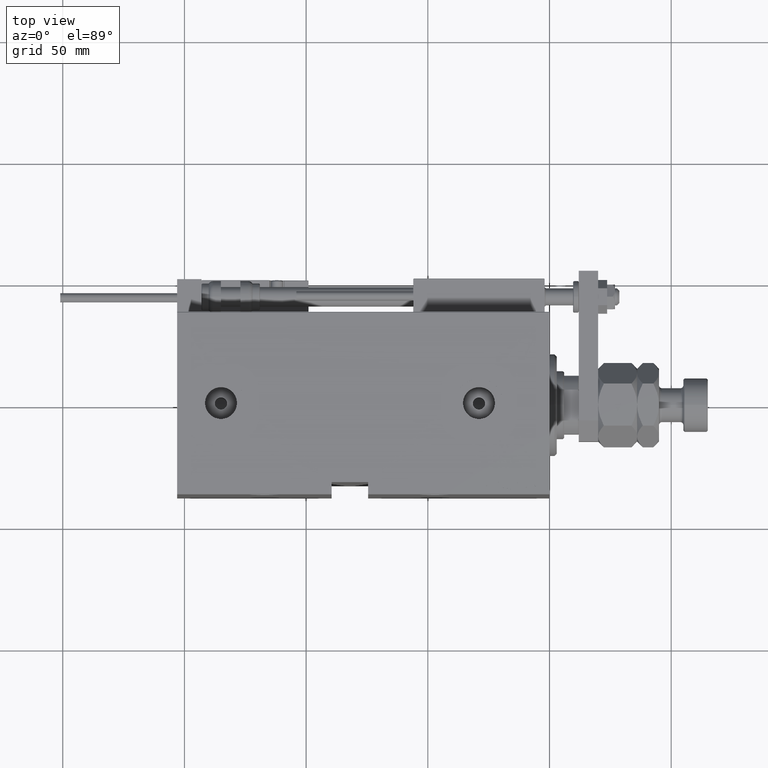
[diagram: clean part render]
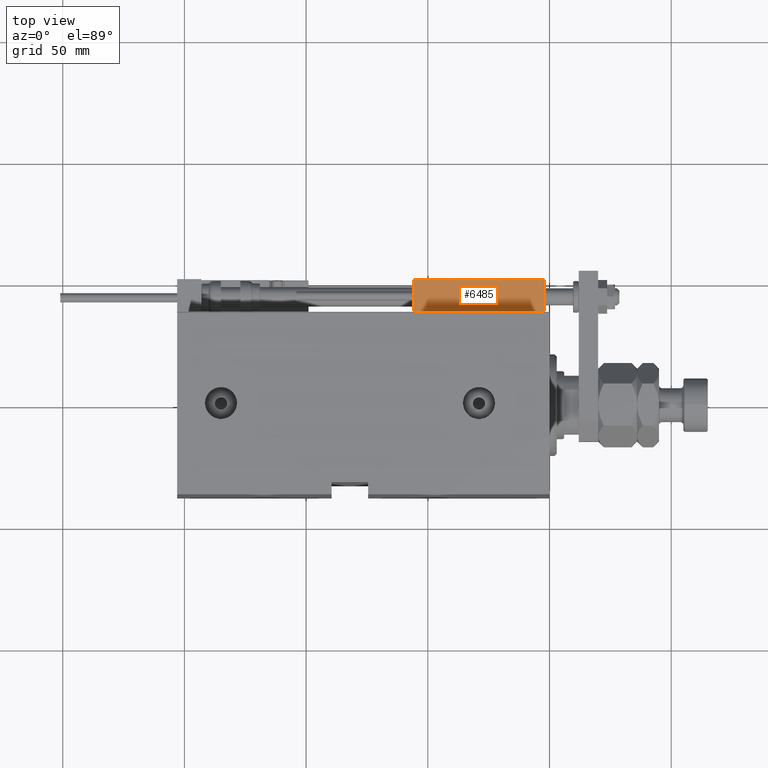
[diagram: same view with one face highlighted and labeled with its STEP entity id]
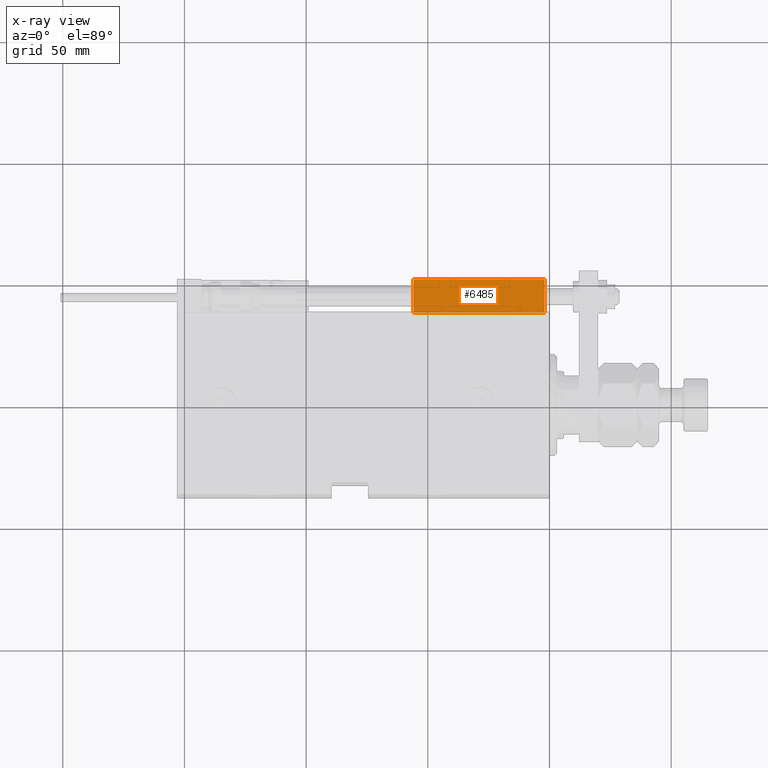
[diagram: x-ray of the same camera — body ghosted, the highlighted face saturated]
A machine part, top view. The second image highlights one B-rep face of the part: STEP entity #6485.
The next image is the same camera in x-ray: the body ghosted, the highlighted face saturated — about 0% of this face is hidden behind the body in this view.
In plain terms, the highlighted planar face has unit normal (-0, -0, -1).
Its self-contained STEP definition (entity closure, byte-faithful):
#665 = EDGE_CURVE ( 'NONE', #45857, #34388, #19504, .T. ) ;
#1993 = CARTESIAN_POINT ( 'NONE',  ( 27.00000000000006395, 20.00000000000001776, 14.00000000000000000 ) ) ;
#2033 = VECTOR ( 'NONE', #28732, 1000.000000000000000 ) ;
#6485 = ADVANCED_FACE ( 'NONE', ( #22249 ), #34842, .F. ) ;
#9977 = CARTESIAN_POINT ( 'NONE',  ( -26.99999999999993605, 20.00000000000002132, 0.000000000000000000 ) ) ;
#14683 = CARTESIAN_POINT ( 'NONE',  ( 27.00000000000006395, 20.00000000000001776, 0.000000000000000000 ) ) ;
#19471 = DIRECTION ( 'NONE',  ( -0.000000000000000000, -0.000000000000000000, -1.000000000000000000 ) ) ;
#19504 = LINE ( 'NONE', #19764, #41462 ) ;
#19537 = CARTESIAN_POINT ( 'NONE',  ( -26.99999999999993605, 20.00000000000002132, 13.70000000000000107 ) ) ;
#19764 = CARTESIAN_POINT ( 'NONE',  ( 27.00000000000006395, 20.00000000000001776, 13.70000000000000107 ) ) ;
#20737 = VECTOR ( 'NONE', #19471, 1000.000000000000000 ) ;
#20749 = VERTEX_POINT ( 'NONE', #14683 ) ;
#21484 = ORIENTED_EDGE ( 'NONE', *, *, #50952, .F. ) ;
#22249 = FACE_OUTER_BOUND ( 'NONE', #39278, .T. ) ;
#22349 = EDGE_CURVE ( 'NONE', #20749, #36945, #49407, .T. ) ;
#24662 = ORIENTED_EDGE ( 'NONE', *, *, #33002, .T. ) ;
#28732 = DIRECTION ( 'NONE',  ( -1.000000000000000000, 6.424901762877062263E-17, 0.000000000000000000 ) ) ;
#33002 = EDGE_CURVE ( 'NONE', #34388, #20749, #38691, .T. ) ;
#33277 = CARTESIAN_POINT ( 'NONE',  ( 27.00000000000006395, 20.00000000000001776, 0.000000000000000000 ) ) ;
#34308 = DIRECTION ( 'NONE',  ( -6.424901762877063495E-17, -1.000000000000000000, 0.000000000000000000 ) ) ;
#34388 = VERTEX_POINT ( 'NONE', #51713 ) ;
#34842 = PLANE ( 'NONE',  #41102 ) ;
#36132 = ORIENTED_EDGE ( 'NONE', *, *, #665, .T. ) ;
#36945 = VERTEX_POINT ( 'NONE', #9977 ) ;
#38333 = DIRECTION ( 'NONE',  ( 1.000000000000000000, -6.424901762877063495E-17, 0.000000000000000000 ) ) ;
#38691 = LINE ( 'NONE', #1993, #52500 ) ;
#39278 = EDGE_LOOP ( 'NONE', ( #21484, #36132, #24662, #39680 ) ) ;
#39680 = ORIENTED_EDGE ( 'NONE', *, *, #22349, .T. ) ;
#41102 = AXIS2_PLACEMENT_3D ( 'NONE', #51241, #34308, #38333 ) ;
#41462 = VECTOR ( 'NONE', #44409, 1000.000000000000000 ) ;
#42468 = DIRECTION ( 'NONE',  ( -0.000000000000000000, -0.000000000000000000, -1.000000000000000000 ) ) ;
#44409 = DIRECTION ( 'NONE',  ( 1.000000000000000000, -6.424901762877063495E-17, -0.000000000000000000 ) ) ;
#45857 = VERTEX_POINT ( 'NONE', #19537 ) ;
#47647 = LINE ( 'NONE', #51946, #20737 ) ;
#49407 = LINE ( 'NONE', #33277, #2033 ) ;
#50952 = EDGE_CURVE ( 'NONE', #45857, #36945, #47647, .T. ) ;
#51241 = CARTESIAN_POINT ( 'NONE',  ( 27.00000000000006395, 20.00000000000001776, 14.00000000000000000 ) ) ;
#51713 = CARTESIAN_POINT ( 'NONE',  ( 27.00000000000006395, 20.00000000000001776, 13.70000000000000107 ) ) ;
#51946 = CARTESIAN_POINT ( 'NONE',  ( -26.99999999999993605, 20.00000000000002132, 14.00000000000000000 ) ) ;
#52500 = VECTOR ( 'NONE', #42468, 1000.000000000000000 ) ;